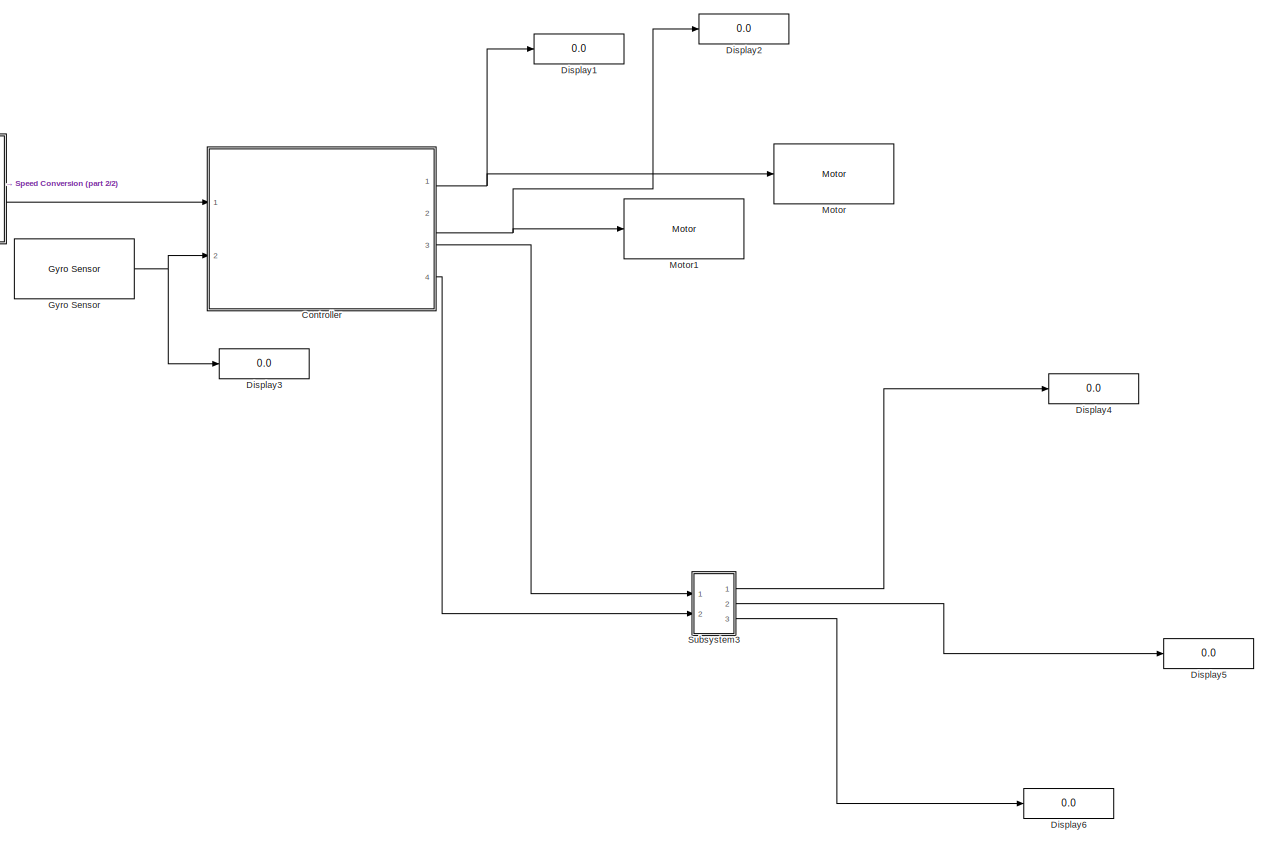
[diagram: root canvas - part 1/2, most of the canvas]
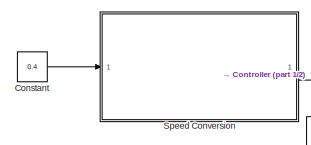
[diagram: root canvas - part 2/2, top left region]
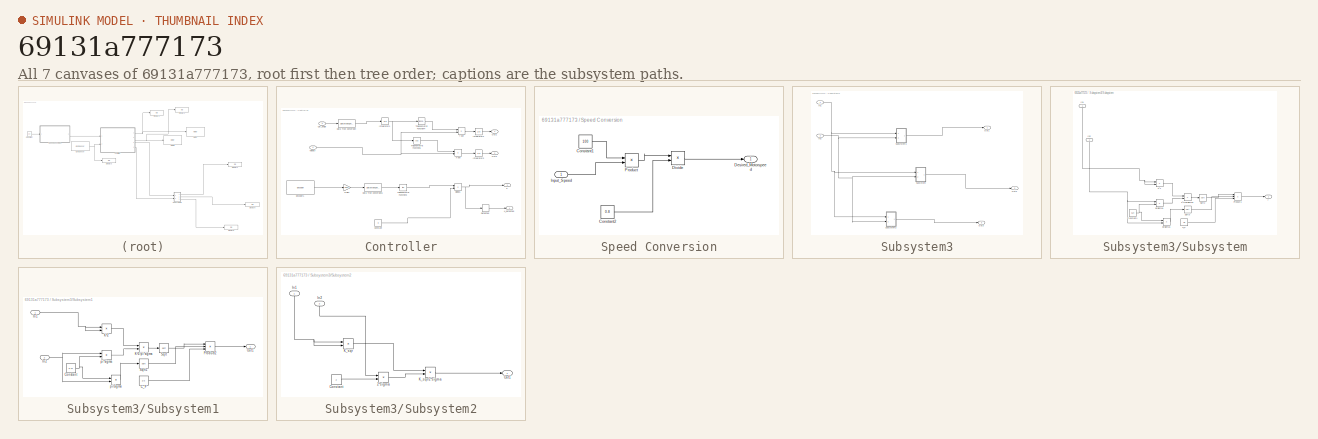
[diagram: thumbnail index - all 7 canvases of the model, root first then tree order]
MODEL slx_69131a777173
KIND model
CONFIG AbsTol = auto
CONFIG FixedStep = auto
CONFIG MaxStep = auto
CONFIG MinStep = auto
CONFIG RelTol = 1e-3
CONFIG SampleTimeConstraint = Unconstrained
CONFIG Solver = FixedStepAuto
CONFIG SolverMode = Auto
CONFIG SolverName = FixedStepAuto
CONFIG StartTime = 0.0
CONFIG StopTime = inf
BLOCK [Constant] Constant
  Value = 0.4
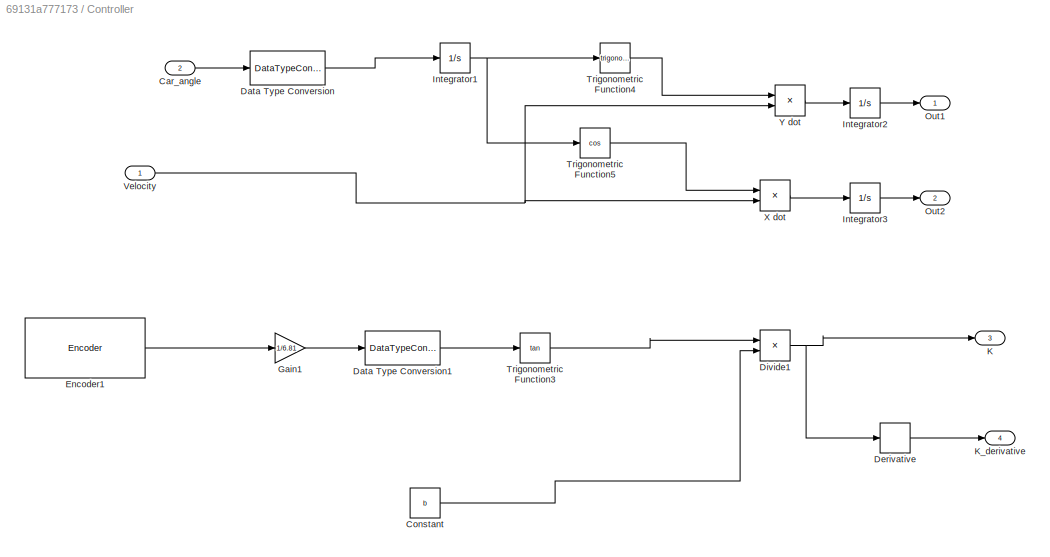
BLOCK [SubSystem] Controller
  Ports = [2, 4]
  RequestExecContextInheritance = off
  Variant = off
BLOCK [Inport] Controller/Car_angle
  IconDisplay = Port number
  Port = 2
BLOCK [Constant] Controller/Constant
  Value = b
BLOCK [DataTypeConversion] Controller/Data Type Conversion
  OutDataTypeStr = double
  RndMeth = Floor
  SaturateOnIntegerOverflow = off
BLOCK [DataTypeConversion] Controller/Data Type Conversion1
  OutDataTypeStr = double
  RndMeth = Floor
  SaturateOnIntegerOverflow = off
BLOCK [Derivative] Controller/Derivative
BLOCK [Product] Controller/Divide1
  InputSameDT = off
  Inputs = */
  OutDataTypeStr = Inherit: Inherit via internal rule
  Ports = [2, 1]
  RndMeth = Floor
  SaturateOnIntegerOverflow = off
BLOCK [Reference] Controller/Encoder1  REF=legoev3lib/Encoder
  Ports = [0, 1]
  SourceBlock = legoev3lib/Encoder
  SourceType = LEGO MINDSTORMS EV3 Encoder
BLOCK [Gain] Controller/Gain1
  Gain = 1/6.81
  OutDataTypeStr = Inherit: Inherit via internal rule
  ParamDataTypeStr = Inherit: Inherit via internal rule
  SaturateOnIntegerOverflow = off
BLOCK [Integrator] Controller/Integrator1
  Ports = [1, 1]
BLOCK [Integrator] Controller/Integrator2
  Ports = [1, 1]
BLOCK [Integrator] Controller/Integrator3
  Ports = [1, 1]
BLOCK [Outport] Controller/K
  IconDisplay = Port number
  Port = 3
BLOCK [Outport] Controller/K_derivative
  IconDisplay = Port number
  Port = 4
BLOCK [Outport] Controller/Out1
  IconDisplay = Port number
BLOCK [Outport] Controller/Out2
  IconDisplay = Port number
  Port = 2
BLOCK [Trigonometry] Controller/Trigonometric Function3
  Operator = tan
  OutputSignalType = real
  Ports = [1, 1]
BLOCK [Trigonometry] Controller/Trigonometric Function4
  Ports = [1, 1]
BLOCK [Trigonometry] Controller/Trigonometric Function5
  Operator = cos
  Ports = [1, 1]
BLOCK [Inport] Controller/Velocity
  IconDisplay = Port number
BLOCK [Product] Controller/X dot 
  InputSameDT = off
  OutDataTypeStr = Inherit: Inherit via internal rule
  Ports = [2, 1]
  RndMeth = Floor
  SaturateOnIntegerOverflow = off
BLOCK [Product] Controller/Y dot 
  InputSameDT = off
  OutDataTypeStr = Inherit: Inherit via internal rule
  Ports = [2, 1]
  RndMeth = Floor
  SaturateOnIntegerOverflow = off
BLOCK [Display] Display1
  Decimation = 1
  Ports = [1]
BLOCK [Display] Display2
  Decimation = 1
  Ports = [1]
BLOCK [Display] Display3
  Decimation = 1
  Ports = [1]
BLOCK [Display] Display4
  Decimation = 2
  Ports = [1]
BLOCK [Display] Display5
  Decimation = 1
  Ports = [1]
BLOCK [Display] Display6
  Decimation = 1
  Ports = [1]
BLOCK [Reference] Gyro Sensor  REF=legoev3lib/Gyro Sensor
  Ports = [0, 1]
  SourceBlock = legoev3lib/Gyro Sensor
  SourceType = LEGO MINDSTORMS EV3 Gyro Sensor
BLOCK [Reference] Motor  REF=legoev3lib/Motor
  Ports = [1]
  SourceBlock = legoev3lib/Motor
  SourceType = LEGO MINDSTORMS EV3 Motor
BLOCK [Reference] Motor1  REF=legoev3lib/Motor
  Ports = [1]
  SourceBlock = legoev3lib/Motor
  SourceType = LEGO MINDSTORMS EV3 Motor
BLOCK [SubSystem] Speed Conversion
  Ports = [1, 1]
  RequestExecContextInheritance = off
  Variant = off
BLOCK [Constant] Speed Conversion/Constant1
  Value = 100
BLOCK [Constant] Speed Conversion/Constant2
  Value = 0.8
BLOCK [Outport] Speed Conversion/Desired_Motorspeed
  IconDisplay = Port number
BLOCK [Product] Speed Conversion/Divide
  InputSameDT = off
  Inputs = */
  OutDataTypeStr = Inherit: Inherit via internal rule
  Ports = [2, 1]
  RndMeth = Floor
  SaturateOnIntegerOverflow = off
BLOCK [Inport] Speed Conversion/Input_Speed
  IconDisplay = Port number
BLOCK [Product] Speed Conversion/Product
  InputSameDT = off
  OutDataTypeStr = Inherit: Inherit via internal rule
  Ports = [2, 1]
  RndMeth = Floor
  SaturateOnIntegerOverflow = off
BLOCK [SubSystem] Subsystem3
  Ports = [2, 3]
  RequestExecContextInheritance = off
  Variant = off
BLOCK [Inport] Subsystem3/In1
  IconDisplay = Port number
BLOCK [Inport] Subsystem3/In2
  IconDisplay = Port number
  Port = 2
BLOCK [Outport] Subsystem3/Out1
  IconDisplay = Port number
BLOCK [Outport] Subsystem3/Out2
  IconDisplay = Port number
  Port = 2
BLOCK [Outport] Subsystem3/Out3
  IconDisplay = Port number
  Port = 3
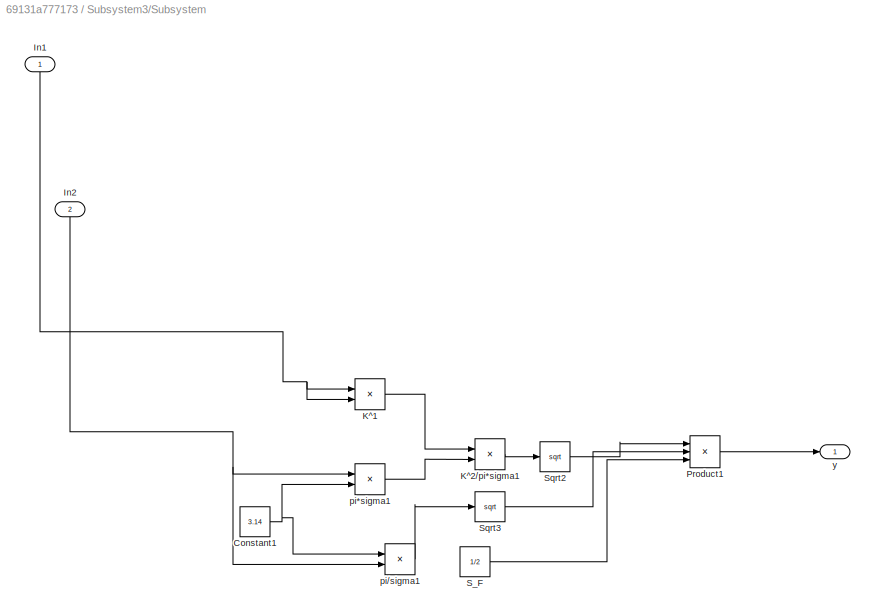
BLOCK [SubSystem] Subsystem3/Subsystem
  Ports = [2, 1]
  RequestExecContextInheritance = off
  Variant = off
BLOCK [Constant] Subsystem3/Subsystem/Constant1
  Value = 3.14
BLOCK [Inport] Subsystem3/Subsystem/In1
  IconDisplay = Port number
BLOCK [Inport] Subsystem3/Subsystem/In2
  IconDisplay = Port number
  Port = 2
BLOCK [Product] Subsystem3/Subsystem/K^1
  InputSameDT = off
  OutDataTypeStr = Inherit: Inherit via internal rule
  Ports = [2, 1]
  RndMeth = Floor
  SaturateOnIntegerOverflow = off
BLOCK [Product] Subsystem3/Subsystem/K^2//pi*sigma1
  InputSameDT = off
  Inputs = */
  OutDataTypeStr = Inherit: Inherit via internal rule
  Ports = [2, 1]
  RndMeth = Floor
  SaturateOnIntegerOverflow = off
BLOCK [Product] Subsystem3/Subsystem/Product1
  InputSameDT = off
  Inputs = 3
  OutDataTypeStr = Inherit: Inherit via internal rule
  Ports = [3, 1]
  RndMeth = Floor
  SaturateOnIntegerOverflow = off
BLOCK [Constant] Subsystem3/Subsystem/S_F
  Value = 1/2
BLOCK [Sqrt] Subsystem3/Subsystem/Sqrt2
BLOCK [Sqrt] Subsystem3/Subsystem/Sqrt3
BLOCK [Product] Subsystem3/Subsystem/pi*sigma1
  InputSameDT = off
  OutDataTypeStr = Inherit: Inherit via internal rule
  Ports = [2, 1]
  RndMeth = Floor
  SaturateOnIntegerOverflow = off
BLOCK [Product] Subsystem3/Subsystem/pi//sigma1
  InputSameDT = off
  Inputs = */
  OutDataTypeStr = Inherit: Inherit via internal rule
  Ports = [2, 1]
  RndMeth = Floor
  SaturateOnIntegerOverflow = off
BLOCK [Outport] Subsystem3/Subsystem/y
  IconDisplay = Port number
BLOCK [SubSystem] Subsystem3/Subsystem1
  Ports = [2, 1]
  RequestExecContextInheritance = off
  Variant = off
BLOCK [Constant] Subsystem3/Subsystem1/C_F
  Value = 1/2
BLOCK [Constant] Subsystem3/Subsystem1/Constant
  Value = 3.14
BLOCK [Inport] Subsystem3/Subsystem1/In1
  IconDisplay = Port number
BLOCK [Inport] Subsystem3/Subsystem1/In2
  IconDisplay = Port number
  Port = 2
BLOCK [Product] Subsystem3/Subsystem1/K^2
  InputSameDT = off
  OutDataTypeStr = Inherit: Inherit via internal rule
  Ports = [2, 1]
  RndMeth = Floor
  SaturateOnIntegerOverflow = off
BLOCK [Product] Subsystem3/Subsystem1/K^2//pi*sigma
  InputSameDT = off
  Inputs = */
  OutDataTypeStr = Inherit: Inherit via internal rule
  Ports = [2, 1]
  RndMeth = Floor
  SaturateOnIntegerOverflow = off
BLOCK [Outport] Subsystem3/Subsystem1/Out1
  IconDisplay = Port number
BLOCK [Product] Subsystem3/Subsystem1/Product2
  InputSameDT = off
  Inputs = 3
  OutDataTypeStr = Inherit: Inherit via internal rule
  Ports = [3, 1]
  RndMeth = Floor
  SaturateOnIntegerOverflow = off
BLOCK [Sqrt] Subsystem3/Subsystem1/Sqrt
BLOCK [Sqrt] Subsystem3/Subsystem1/Sqrt1
BLOCK [Product] Subsystem3/Subsystem1/pi*sigma
  InputSameDT = off
  OutDataTypeStr = Inherit: Inherit via internal rule
  Ports = [2, 1]
  RndMeth = Floor
  SaturateOnIntegerOverflow = off
BLOCK [Product] Subsystem3/Subsystem1/pi//sigma
  InputSameDT = off
  Inputs = */
  OutDataTypeStr = Inherit: Inherit via internal rule
  Ports = [2, 1]
  RndMeth = Floor
  SaturateOnIntegerOverflow = off
BLOCK [SubSystem] Subsystem3/Subsystem2
  Ports = [2, 1]
  RequestExecContextInheritance = off
  Variant = off
BLOCK [Product] Subsystem3/Subsystem2/2*sigma
  InputSameDT = off
  OutDataTypeStr = Inherit: Inherit via internal rule
  Ports = [2, 1]
  RndMeth = Floor
  SaturateOnIntegerOverflow = off
BLOCK [Constant] Subsystem3/Subsystem2/Constant
  Value = 2
BLOCK [Inport] Subsystem3/Subsystem2/In1
  IconDisplay = Port number
BLOCK [Inport] Subsystem3/Subsystem2/In2
  IconDisplay = Port number
  Port = 2
BLOCK [Product] Subsystem3/Subsystem2/K_sqr
  InputSameDT = off
  OutDataTypeStr = Inherit: Inherit via internal rule
  Ports = [2, 1]
  RndMeth = Floor
  SaturateOnIntegerOverflow = off
BLOCK [Product] Subsystem3/Subsystem2/K_sqr//2*sigma
  InputSameDT = off
  Inputs = */
  OutDataTypeStr = Inherit: Inherit via internal rule
  Ports = [2, 1]
  RndMeth = Floor
  SaturateOnIntegerOverflow = off
BLOCK [Outport] Subsystem3/Subsystem2/Out1
  IconDisplay = Port number
LINE Constant:1 -> Speed Conversion:1
LINE Controller/Car_angle:1 -> Controller/Data Type Conversion:1
LINE Controller/Constant:1 -> Controller/Divide1:2
LINE Controller/Data Type Conversion1:1 -> Controller/Trigonometric Function3:1
LINE Controller/Data Type Conversion:1 -> Controller/Integrator1:1
LINE Controller/Derivative:1 -> Controller/K_derivative:1
NET Controller/Divide1:1 -> Controller/Derivative:1, Controller/K:1
LINE Controller/Encoder1:1 -> Controller/Gain1:1
LINE Controller/Gain1:1 -> Controller/Data Type Conversion1:1
NET Controller/Integrator1:1 -> Controller/Trigonometric Function4:1, Controller/Trigonometric Function5:1
LINE Controller/Integrator2:1 -> Controller/Out1:1
LINE Controller/Integrator3:1 -> Controller/Out2:1
LINE Controller/Trigonometric Function3:1 -> Controller/Divide1:1
LINE Controller/Trigonometric Function4:1 -> Controller/Y dot :1
LINE Controller/Trigonometric Function5:1 -> Controller/X dot :1
NET Controller/Velocity:1 -> Controller/X dot :2, Controller/Y dot :2
LINE Controller/X dot :1 -> Controller/Integrator3:1
LINE Controller/Y dot :1 -> Controller/Integrator2:1
NET Controller:1 -> Display1:1, Motor:1
NET Controller:2 -> Display2:1, Motor1:1
LINE Controller:3 -> Subsystem3:1
LINE Controller:4 -> Subsystem3:2
NET Gyro Sensor:1 -> Controller:2, Display3:1
LINE Speed Conversion/Constant1:1 -> Speed Conversion/Product:1
LINE Speed Conversion/Constant2:1 -> Speed Conversion/Divide:2
LINE Speed Conversion/Divide:1 -> Speed Conversion/Desired_Motorspeed:1
LINE Speed Conversion/Input_Speed:1 -> Speed Conversion/Product:2
LINE Speed Conversion/Product:1 -> Speed Conversion/Divide:1
LINE Speed Conversion:1 -> Controller:1
NET Subsystem3/In1:1 -> Subsystem3/Subsystem1:1, Subsystem3/Subsystem2:1, Subsystem3/Subsystem:1
NET Subsystem3/In2:1 -> Subsystem3/Subsystem1:2, Subsystem3/Subsystem2:2, Subsystem3/Subsystem:2
NET Subsystem3/Subsystem/Constant1:1 -> Subsystem3/Subsystem/pi*sigma1:2, Subsystem3/Subsystem/pi//sigma1:1
NET Subsystem3/Subsystem/In1:1 -> Subsystem3/Subsystem/K^1:1, Subsystem3/Subsystem/K^1:2
NET Subsystem3/Subsystem/In2:1 -> Subsystem3/Subsystem/pi*sigma1:1, Subsystem3/Subsystem/pi//sigma1:2
LINE Subsystem3/Subsystem/K^1:1 -> Subsystem3/Subsystem/K^2//pi*sigma1:1
LINE Subsystem3/Subsystem/K^2//pi*sigma1:1 -> Subsystem3/Subsystem/Sqrt2:1
LINE Subsystem3/Subsystem/Product1:1 -> Subsystem3/Subsystem/y:1
LINE Subsystem3/Subsystem/S_F:1 -> Subsystem3/Subsystem/Product1:3
LINE Subsystem3/Subsystem/Sqrt2:1 -> Subsystem3/Subsystem/Product1:1
LINE Subsystem3/Subsystem/Sqrt3:1 -> Subsystem3/Subsystem/Product1:2
LINE Subsystem3/Subsystem/pi*sigma1:1 -> Subsystem3/Subsystem/K^2//pi*sigma1:2
LINE Subsystem3/Subsystem/pi//sigma1:1 -> Subsystem3/Subsystem/Sqrt3:1
LINE Subsystem3/Subsystem1/C_F:1 -> Subsystem3/Subsystem1/Product2:3
NET Subsystem3/Subsystem1/Constant:1 -> Subsystem3/Subsystem1/pi*sigma:2, Subsystem3/Subsystem1/pi//sigma:1
NET Subsystem3/Subsystem1/In1:1 -> Subsystem3/Subsystem1/K^2:1, Subsystem3/Subsystem1/K^2:2
NET Subsystem3/Subsystem1/In2:1 -> Subsystem3/Subsystem1/pi*sigma:1, Subsystem3/Subsystem1/pi//sigma:2
LINE Subsystem3/Subsystem1/K^2//pi*sigma:1 -> Subsystem3/Subsystem1/Sqrt:1
LINE Subsystem3/Subsystem1/K^2:1 -> Subsystem3/Subsystem1/K^2//pi*sigma:1
LINE Subsystem3/Subsystem1/Product2:1 -> Subsystem3/Subsystem1/Out1:1
LINE Subsystem3/Subsystem1/Sqrt1:1 -> Subsystem3/Subsystem1/Product2:2
LINE Subsystem3/Subsystem1/Sqrt:1 -> Subsystem3/Subsystem1/Product2:1
LINE Subsystem3/Subsystem1/pi*sigma:1 -> Subsystem3/Subsystem1/K^2//pi*sigma:2
LINE Subsystem3/Subsystem1/pi//sigma:1 -> Subsystem3/Subsystem1/Sqrt1:1
LINE Subsystem3/Subsystem1:1 -> Subsystem3/Out1:1
LINE Subsystem3/Subsystem2/2*sigma:1 -> Subsystem3/Subsystem2/K_sqr//2*sigma:2
LINE Subsystem3/Subsystem2/Constant:1 -> Subsystem3/Subsystem2/2*sigma:2
NET Subsystem3/Subsystem2/In1:1 -> Subsystem3/Subsystem2/K_sqr:1, Subsystem3/Subsystem2/K_sqr:2
LINE Subsystem3/Subsystem2/In2:1 -> Subsystem3/Subsystem2/2*sigma:1
LINE Subsystem3/Subsystem2/K_sqr//2*sigma:1 -> Subsystem3/Subsystem2/Out1:1
LINE Subsystem3/Subsystem2/K_sqr:1 -> Subsystem3/Subsystem2/K_sqr//2*sigma:1
LINE Subsystem3/Subsystem2:1 -> Subsystem3/Out3:1
LINE Subsystem3/Subsystem:1 -> Subsystem3/Out2:1
LINE Subsystem3:1 -> Display4:1
LINE Subsystem3:2 -> Display5:1
LINE Subsystem3:3 -> Display6:1
note: NET lines group one-source signal fan-out (src -> all destinations, sorted); 1:1 wires keep LINE
